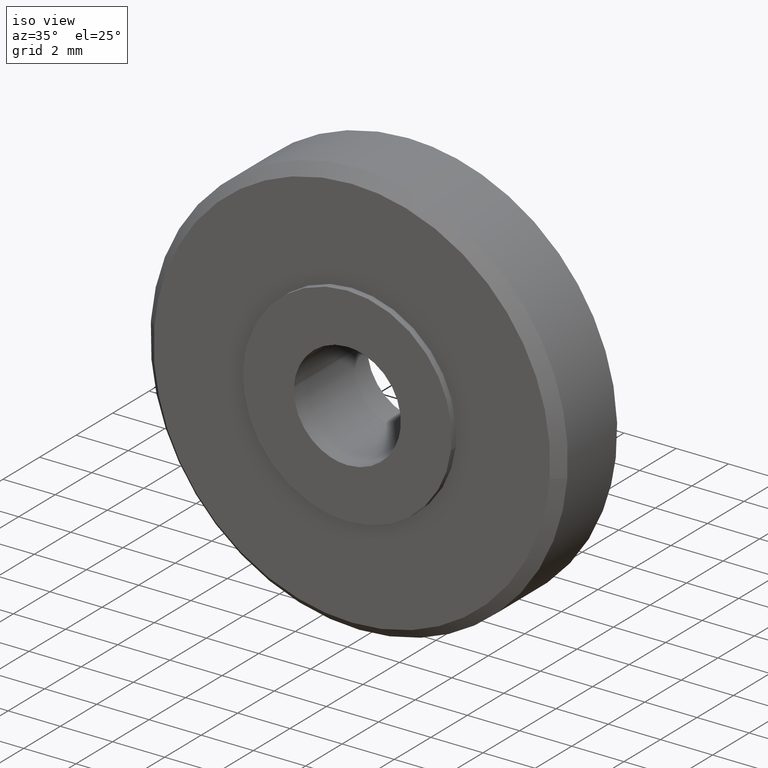
[diagram: clean part render]
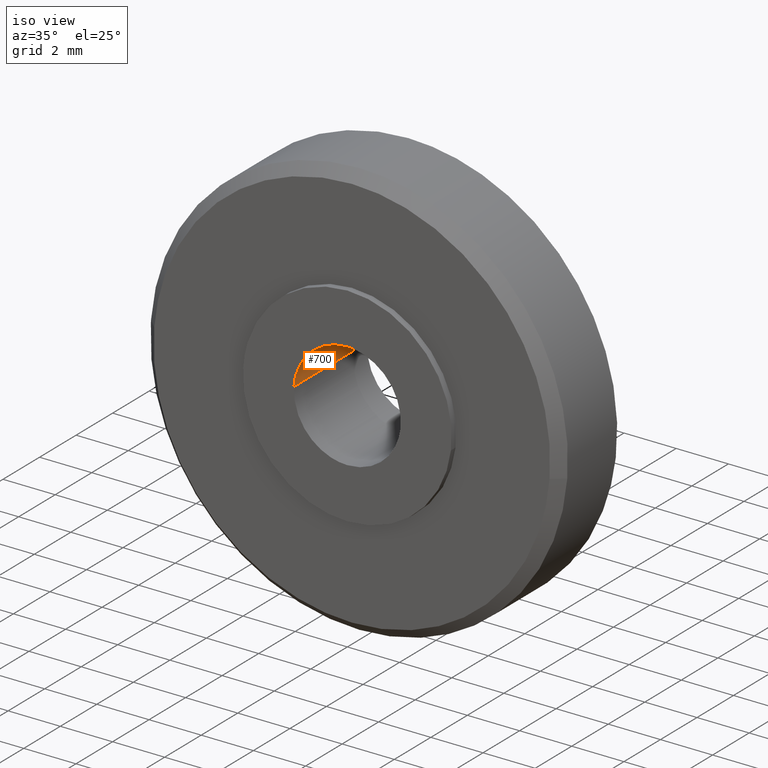
[diagram: same view with one face highlighted and labeled with its STEP entity id]
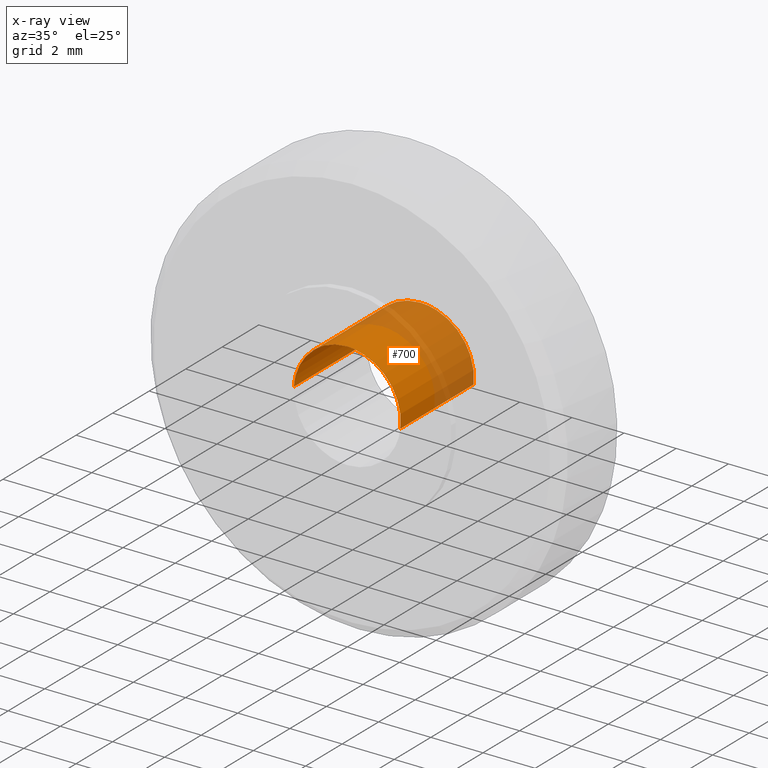
[diagram: x-ray of the same camera — body ghosted, the highlighted face saturated]
A machine part, iso view. The second image highlights one B-rep face of the part: STEP entity #700.
The next image is the same camera in x-ray: the body ghosted, the highlighted face saturated — about 48% of this face is hidden behind the body in this view.
In plain terms, the highlighted face is a freeform B-spline surface patch.
Its self-contained STEP definition (entity closure, byte-faithful):
#594=CARTESIAN_POINT('',(2.032078772386892,4.100000000000001,-0.272178836859112));
#595=CARTESIAN_POINT('',(2.033879212877804,4.100000000000001,-0.257031921522848));
#596=CARTESIAN_POINT('',(2.042594611669641,4.100000000000000,-0.183710193707854));
#597=CARTESIAN_POINT('',(2.046176336764827,4.100000000000000,-0.125149506046457));
#598=CARTESIAN_POINT('',(2.171325842811283,4.100000000000000,1.921026830718370));
#599=CARTESIAN_POINT('',(0.125149506046457,4.100000000000000,2.046176336764827));
#600=CARTESIAN_POINT('',(-1.921026830718370,4.100000000000000,2.171325842811283));
#601=CARTESIAN_POINT('',(-2.047076403588421,4.100000000000000,0.110433543561868));
#602=CARTESIAN_POINT('',(-2.047971123748661,4.100000000000001,0.095804998250374));
#603=CARTESIAN_POINT('',(2.032078772386892,-0.102500000000000,-0.272178836859112));
#604=CARTESIAN_POINT('',(2.033879212877804,-0.102500000000000,-0.257031921522848));
#605=CARTESIAN_POINT('',(2.042594611669641,-0.102500000000000,-0.183710193707854));
#606=CARTESIAN_POINT('',(2.046176336764827,-0.102500000000000,-0.125149506046457));
#607=CARTESIAN_POINT('',(2.171325842811283,-0.102500000000000,1.921026830718370));
#608=CARTESIAN_POINT('',(0.125149506046457,-0.102500000000000,2.046176336764827));
#609=CARTESIAN_POINT('',(-1.921026830718370,-0.102500000000000,2.171325842811283));
#610=CARTESIAN_POINT('',(-2.047076403588421,-0.102500000000000,0.110433543561868));
#611=CARTESIAN_POINT('',(-2.047971123748661,-0.102500000000000,0.095804998250374));
#619=(BOUNDED_SURFACE()B_SPLINE_SURFACE(2,1,((#594,#603),(#595,#604),(#596,#605),(#597,#606),(#598,#607),(#599,#608),(#600,#609),(#601,#610),(#602,#611)),.UNSPECIFIED.,.F.,.F.,.U.)B_SPLINE_SURFACE_WITH_KNOTS((3,1,2,2,1,3),(2,2),(0.0,0.034643167991004,0.170505216449379,3.567056427908759,6.963607639368138,6.998256939861784),(0.0,4.202500000000001),.UNSPECIFIED.)GEOMETRIC_REPRESENTATION_ITEM()RATIONAL_B_SPLINE_SURFACE(((0.972009043359135,0.972009043359135),(0.974757422077131,0.974757422077131),(0.988284271247462,0.988284271247462),(1.0,1.0),(0.707106781186548,0.707106781186548),(1.0,1.0),(0.707106781186548,0.707106781186548),(1.002987896992979,1.002987896992979),(1.005975793985958,1.005975793985958)))REPRESENTATION_ITEM('')SURFACE());
#620=CARTESIAN_POINT('',(2.035669703009237,3.999999999999993,-0.241968717498998));
#621=VERTEX_POINT('',#620);
#622=CARTESIAN_POINT('',(0.0,4.0,2.050000000000000));
#623=VERTEX_POINT('',#622);
#624=CARTESIAN_POINT('',(2.035669703009238,3.999999999999993,-0.241968717498998));
#625=CARTESIAN_POINT('',(2.050000000000001,4.000000000000000,-0.121408705776598));
#626=CARTESIAN_POINT('',(2.050000000000000,4.0,-1.224606E-016));
#627=CARTESIAN_POINT('',(2.050000000000001,4.0,2.050000000000001));
#628=CARTESIAN_POINT('',(0.0,4.0,2.050000000000000));
#636=(BOUNDED_CURVE()B_SPLINE_CURVE(2,(#624,#625,#626,#627,#628),.UNSPECIFIED.,.F.,.U.)B_SPLINE_CURVE_WITH_KNOTS((3,2,3),(0.229562595020764,0.250000000000000,0.500000000000000),.UNSPECIFIED.)CURVE()GEOMETRIC_REPRESENTATION_ITEM()RATIONAL_B_SPLINE_CURVE((0.956026992343031,0.976056090685750,1.0,0.707106781186547,1.0))REPRESENTATION_ITEM(''));
#637=EDGE_CURVE('',#621,#623,#636,.T.);
#638=ORIENTED_EDGE('',*,*,#637,.F.);
#639=CARTESIAN_POINT('',(2.035669700916635,-4.083389E-016,-0.241968735104062));
#640=VERTEX_POINT('',#639);
#641=CARTESIAN_POINT('',(2.035669703009237,3.999999999999993,-0.241968717498998));
#642=CARTESIAN_POINT('',(2.035669700916635,-4.083389E-016,-0.241968735104062));
#643=QUASI_UNIFORM_CURVE('',1,(#641,#642),.UNSPECIFIED.,.F.,.U.);
#644=EDGE_CURVE('',#621,#640,#643,.T.);
#645=ORIENTED_EDGE('',*,*,#644,.T.);
#646=CARTESIAN_POINT('',(0.0,-3.765665E-016,2.050000000000000));
#647=VERTEX_POINT('',#646);
#648=CARTESIAN_POINT('',(2.035669700916635,-4.083389E-016,-0.241968735104062));
#649=CARTESIAN_POINT('',(2.050000000000000,-3.765665E-016,-0.121408714672188));
#650=CARTESIAN_POINT('',(2.050000000000000,-3.765665E-016,-1.224606E-016));
#651=CARTESIAN_POINT('',(2.050000000000001,-3.765665E-016,2.050000000000001));
#652=CARTESIAN_POINT('',(0.0,-3.765665E-016,2.050000000000000));
#660=(BOUNDED_CURVE()B_SPLINE_CURVE(2,(#648,#649,#650,#651,#652),.UNSPECIFIED.,.F.,.U.)B_SPLINE_CURVE_WITH_KNOTS((3,2,3),(0.229562593559174,0.250000000000000,0.500000000000000),.UNSPECIFIED.)CURVE()GEOMETRIC_REPRESENTATION_ITEM()RATIONAL_B_SPLINE_CURVE((0.956026989478253,0.976056088973391,1.0,0.707106781186547,1.0))REPRESENTATION_ITEM(''));
#661=EDGE_CURVE('',#640,#647,#660,.T.);
#662=ORIENTED_EDGE('',*,*,#661,.T.);
#663=CARTESIAN_POINT('',(-2.046176569416860,-6.184946E-016,0.125145702103279));
#664=VERTEX_POINT('',#663);
#665=CARTESIAN_POINT('',(0.0,-3.765665E-016,2.050000000000000));
#666=CARTESIAN_POINT('',(-1.928451028938119,-3.765665E-016,2.050000000000000));
#667=CARTESIAN_POINT('',(-2.046176569416861,-6.184946E-016,0.125145702103279));
#675=(BOUNDED_CURVE()B_SPLINE_CURVE(2,(#665,#666,#667),.UNSPECIFIED.,.F.,.U.)B_SPLINE_CURVE_WITH_KNOTS((3,3),(0.500000000000000,0.739333283015075),.UNSPECIFIED.)CURVE()GEOMETRIC_REPRESENTATION_ITEM()RATIONAL_B_SPLINE_CURVE((1.0,0.719603617474095,0.976072729151996))REPRESENTATION_ITEM(''));
#676=EDGE_CURVE('',#647,#664,#675,.T.);
#677=ORIENTED_EDGE('',*,*,#676,.T.);
#678=CARTESIAN_POINT('',(-2.046176336764324,4.0,0.125149506054692));
#679=VERTEX_POINT('',#678);
#680=CARTESIAN_POINT('',(-2.046176336764324,4.0,0.125149506054692));
#681=CARTESIAN_POINT('',(-2.046176569416860,-6.184946E-016,0.125145702103279));
#682=QUASI_UNIFORM_CURVE('',1,(#680,#681),.UNSPECIFIED.,.F.,.U.);
#683=EDGE_CURVE('',#679,#664,#682,.T.);
#684=ORIENTED_EDGE('',*,*,#683,.F.);
#685=CARTESIAN_POINT('',(0.0,4.0,2.050000000000000));
#686=CARTESIAN_POINT('',(-1.928447437141122,4.0,2.050000000000001));
#687=CARTESIAN_POINT('',(-2.046176336764324,4.000000000000001,0.125149506054692));
#695=(BOUNDED_CURVE()B_SPLINE_CURVE(2,(#685,#686,#687),.UNSPECIFIED.,.F.,.U.)B_SPLINE_CURVE_WITH_KNOTS((3,3),(0.500000000000000,0.739332962240579),.UNSPECIFIED.)CURVE()GEOMETRIC_REPRESENTATION_ITEM()RATIONAL_B_SPLINE_CURVE((1.0,0.719603993284793,0.976072041670225))REPRESENTATION_ITEM(''));
#696=EDGE_CURVE('',#623,#679,#695,.T.);
#697=ORIENTED_EDGE('',*,*,#696,.F.);
#698=EDGE_LOOP('',(#638,#645,#662,#677,#684,#697));
#699=FACE_OUTER_BOUND('',#698,.T.);
#700=ADVANCED_FACE('',(#699),#619,.F.);